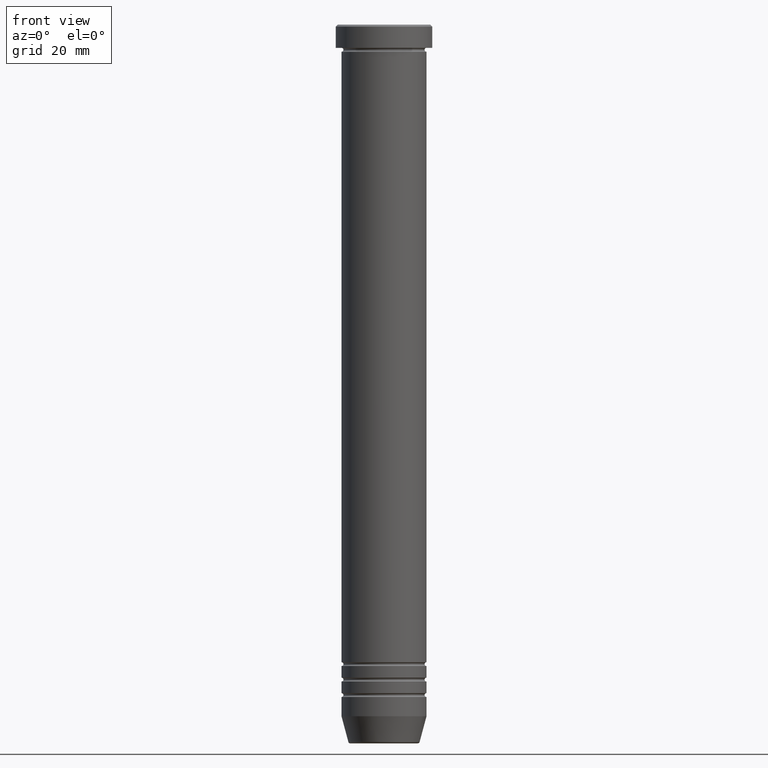
[diagram: clean part render]
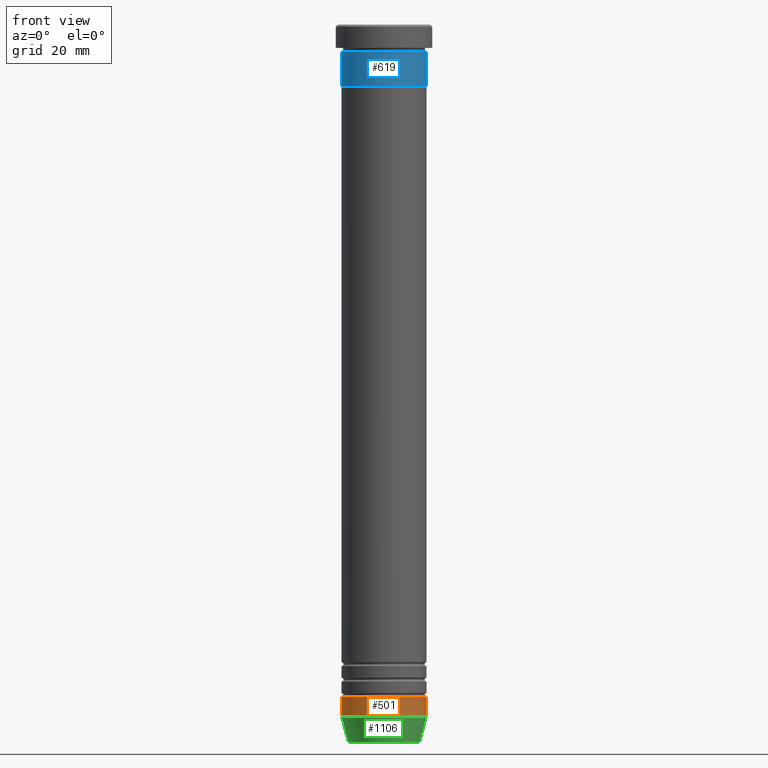
[diagram: same view with three faces highlighted in distinct colors, each labeled with its STEP entity id]
A machine part, front view with three faces highlighted in distinct colors.
Their STEP definitions:

[orange] entity #501 — the highlighted cylindrical surface (partial cylindrical patch) has radius 11 mm, axis along (-0, -0, 1).
#27 = VECTOR ( 'NONE', #895, 1000.000000000000000 ) ;
#55 = CARTESIAN_POINT ( 'NONE',  ( 0.000000000000000000, 0.000000000000000000, 0.000000000000000000 ) ) ;
#86 = ORIENTED_EDGE ( 'NONE', *, *, #672, .F. ) ;
#129 = DIRECTION ( 'NONE',  ( 1.000000000000000000, 0.000000000000000000, 0.000000000000000000 ) ) ;
#134 = LINE ( 'NONE', #224, #1122 ) ;
#158 = ORIENTED_EDGE ( 'NONE', *, *, #403, .T. ) ;
#213 = AXIS2_PLACEMENT_3D ( 'NONE', #668, #1032, #1130 ) ;
#224 = CARTESIAN_POINT ( 'NONE',  ( 11.00000000000000178, 0.000000000000000000, 0.000000000000000000 ) ) ;
#277 = EDGE_CURVE ( 'NONE', #920, #299, #456, .T. ) ;
#283 = CARTESIAN_POINT ( 'NONE',  ( 11.00000000000000178, 0.000000000000000000, -174.0000000000000000 ) ) ;
#299 = VERTEX_POINT ( 'NONE', #370 ) ;
#370 = CARTESIAN_POINT ( 'NONE',  ( -11.00000000000000178, 1.347111479062088602E-15, -174.0000000000000000 ) ) ;
#373 = CARTESIAN_POINT ( 'NONE',  ( 0.000000000000000000, 0.000000000000000000, -174.0000000000000000 ) ) ;
#403 = EDGE_CURVE ( 'NONE', #920, #773, #537, .T. ) ;
#456 = LINE ( 'NONE', #558, #27 ) ;
#469 = AXIS2_PLACEMENT_3D ( 'NONE', #373, #1082, #129 ) ;
#490 = FACE_OUTER_BOUND ( 'NONE', #569, .T. ) ;
#501 = ADVANCED_FACE ( 'NONE', ( #490 ), #839, .T. ) ;
#523 = ORIENTED_EDGE ( 'NONE', *, *, #888, .T. ) ;
#537 = CIRCLE ( 'NONE', #213, 11.00000000000000178 ) ;
#558 = CARTESIAN_POINT ( 'NONE',  ( -11.00000000000000178, 1.347111479062088602E-15, 0.000000000000000000 ) ) ;
#569 = EDGE_LOOP ( 'NONE', ( #1059, #158, #523, #86 ) ) ;
#649 = CARTESIAN_POINT ( 'NONE',  ( 11.00000000000000178, 0.000000000000000000, -179.0000000000000000 ) ) ;
#668 = CARTESIAN_POINT ( 'NONE',  ( 0.000000000000000000, 0.000000000000000000, -179.0000000000000000 ) ) ;
#669 = VERTEX_POINT ( 'NONE', #283 ) ;
#672 = EDGE_CURVE ( 'NONE', #299, #669, #701, .T. ) ;
#701 = CIRCLE ( 'NONE', #469, 11.00000000000000178 ) ;
#748 = DIRECTION ( 'NONE',  ( 1.000000000000000000, 0.000000000000000000, 0.000000000000000000 ) ) ;
#749 = CARTESIAN_POINT ( 'NONE',  ( -11.00000000000000178, 1.347111479062088602E-15, -179.0000000000000000 ) ) ;
#773 = VERTEX_POINT ( 'NONE', #649 ) ;
#839 = CYLINDRICAL_SURFACE ( 'NONE', #889, 11.00000000000000178 ) ;
#844 = DIRECTION ( 'NONE',  ( -0.000000000000000000, -0.000000000000000000, 1.000000000000000000 ) ) ;
#864 = DIRECTION ( 'NONE',  ( -0.000000000000000000, -0.000000000000000000, 1.000000000000000000 ) ) ;
#888 = EDGE_CURVE ( 'NONE', #773, #669, #134, .T. ) ;
#889 = AXIS2_PLACEMENT_3D ( 'NONE', #55, #844, #748 ) ;
#895 = DIRECTION ( 'NONE',  ( -0.000000000000000000, -0.000000000000000000, 1.000000000000000000 ) ) ;
#920 = VERTEX_POINT ( 'NONE', #749 ) ;
#1032 = DIRECTION ( 'NONE',  ( -0.000000000000000000, -0.000000000000000000, 1.000000000000000000 ) ) ;
#1059 = ORIENTED_EDGE ( 'NONE', *, *, #277, .F. ) ;
#1082 = DIRECTION ( 'NONE',  ( -0.000000000000000000, -0.000000000000000000, 1.000000000000000000 ) ) ;
#1122 = VECTOR ( 'NONE', #864, 1000.000000000000000 ) ;
#1130 = DIRECTION ( 'NONE',  ( 1.000000000000000000, 0.000000000000000000, 0.000000000000000000 ) ) ;

[blue] entity #619 — the highlighted cylindrical surface (partial cylindrical patch) has radius 11 mm, axis along (-0, -0, 1).
#29 = DIRECTION ( 'NONE',  ( -0.000000000000000000, -0.000000000000000000, 1.000000000000000000 ) ) ;
#41 = DIRECTION ( 'NONE',  ( 1.000000000000000000, 0.000000000000000000, 0.000000000000000000 ) ) ;
#53 = CIRCLE ( 'NONE', #914, 11.00000000000000000 ) ;
#107 = EDGE_LOOP ( 'NONE', ( #706, #296, #694, #473 ) ) ;
#165 = CARTESIAN_POINT ( 'NONE',  ( 0.000000000000000000, 0.000000000000000000, 0.000000000000000000 ) ) ;
#167 = CARTESIAN_POINT ( 'NONE',  ( 11.00000000000000000, 0.000000000000000000, -6.999999999999999112 ) ) ;
#176 = VERTEX_POINT ( 'NONE', #167 ) ;
#183 = DIRECTION ( 'NONE',  ( -0.000000000000000000, -0.000000000000000000, 1.000000000000000000 ) ) ;
#207 = DIRECTION ( 'NONE',  ( 1.000000000000000000, 0.000000000000000000, 0.000000000000000000 ) ) ;
#219 = EDGE_CURVE ( 'NONE', #989, #1069, #957, .T. ) ;
#230 = VECTOR ( 'NONE', #1002, 1000.000000000000000 ) ;
#260 = CARTESIAN_POINT ( 'NONE',  ( 11.00000000000000000, 0.000000000000000000, -16.00000000000000000 ) ) ;
#270 = FACE_OUTER_BOUND ( 'NONE', #107, .T. ) ;
#272 = CARTESIAN_POINT ( 'NONE',  ( -11.00000000000000000, 1.347111479062088405E-15, 0.000000000000000000 ) ) ;
#296 = ORIENTED_EDGE ( 'NONE', *, *, #1037, .T. ) ;
#306 = VECTOR ( 'NONE', #1090, 1000.000000000000000 ) ;
#318 = CARTESIAN_POINT ( 'NONE',  ( -11.00000000000000000, 1.347111479062088405E-15, -16.00000000000000000 ) ) ;
#419 = AXIS2_PLACEMENT_3D ( 'NONE', #165, #183, #689 ) ;
#439 = CARTESIAN_POINT ( 'NONE',  ( 11.00000000000000000, 0.000000000000000000, 0.000000000000000000 ) ) ;
#473 = ORIENTED_EDGE ( 'NONE', *, *, #731, .F. ) ;
#543 = CARTESIAN_POINT ( 'NONE',  ( -11.00000000000000000, 1.347111479062088405E-15, -6.999999999999999112 ) ) ;
#589 = VERTEX_POINT ( 'NONE', #260 ) ;
#619 = ADVANCED_FACE ( 'NONE', ( #270 ), #622, .T. ) ;
#622 = CYLINDRICAL_SURFACE ( 'NONE', #419, 11.00000000000000000 ) ;
#643 = DIRECTION ( 'NONE',  ( -0.000000000000000000, -0.000000000000000000, 1.000000000000000000 ) ) ;
#660 = EDGE_CURVE ( 'NONE', #589, #176, #870, .T. ) ;
#684 = CIRCLE ( 'NONE', #949, 11.00000000000000000 ) ;
#689 = DIRECTION ( 'NONE',  ( 1.000000000000000000, 0.000000000000000000, 0.000000000000000000 ) ) ;
#694 = ORIENTED_EDGE ( 'NONE', *, *, #660, .T. ) ;
#706 = ORIENTED_EDGE ( 'NONE', *, *, #219, .F. ) ;
#729 = CARTESIAN_POINT ( 'NONE',  ( 0.000000000000000000, 0.000000000000000000, -6.999999999999999112 ) ) ;
#731 = EDGE_CURVE ( 'NONE', #1069, #176, #684, .T. ) ;
#870 = LINE ( 'NONE', #439, #306 ) ;
#914 = AXIS2_PLACEMENT_3D ( 'NONE', #1034, #29, #207 ) ;
#949 = AXIS2_PLACEMENT_3D ( 'NONE', #729, #643, #41 ) ;
#957 = LINE ( 'NONE', #272, #230 ) ;
#989 = VERTEX_POINT ( 'NONE', #318 ) ;
#1002 = DIRECTION ( 'NONE',  ( -0.000000000000000000, -0.000000000000000000, 1.000000000000000000 ) ) ;
#1034 = CARTESIAN_POINT ( 'NONE',  ( 0.000000000000000000, 0.000000000000000000, -16.00000000000000000 ) ) ;
#1037 = EDGE_CURVE ( 'NONE', #989, #589, #53, .T. ) ;
#1069 = VERTEX_POINT ( 'NONE', #543 ) ;
#1090 = DIRECTION ( 'NONE',  ( -0.000000000000000000, -0.000000000000000000, 1.000000000000000000 ) ) ;

[green] entity #1106 — the highlighted conical surface has half-angle 15 deg.
#34 = CARTESIAN_POINT ( 'NONE',  ( -9.223655072137193045, 1.238341722557647399E-15, -185.6294095225512422 ) ) ;
#42 = FACE_OUTER_BOUND ( 'NONE', #302, .T. ) ;
#124 = DIRECTION ( 'NONE',  ( -0.2588190451025214611, 3.169619151431774186E-17, 0.9659258262890679791 ) ) ;
#153 = CARTESIAN_POINT ( 'NONE',  ( 0.000000000000000000, 0.000000000000000000, -185.6294095225512422 ) ) ;
#198 = VERTEX_POINT ( 'NONE', #963 ) ;
#213 = AXIS2_PLACEMENT_3D ( 'NONE', #668, #1032, #1130 ) ;
#254 = LINE ( 'NONE', #444, #635 ) ;
#302 = EDGE_LOOP ( 'NONE', ( #972, #808, #607, #381 ) ) ;
#324 = CONICAL_SURFACE ( 'NONE', #436, 9.124355652982133691, 0.2617993877991502405 ) ;
#381 = ORIENTED_EDGE ( 'NONE', *, *, #403, .F. ) ;
#388 = LINE ( 'NONE', #394, #508 ) ;
#392 = CARTESIAN_POINT ( 'NONE',  ( 0.000000000000000000, 0.000000000000000000, -186.0000000000000000 ) ) ;
#394 = CARTESIAN_POINT ( 'NONE',  ( -9.124355652982133691, 1.117411294470662806E-15, -186.0000000000000000 ) ) ;
#403 = EDGE_CURVE ( 'NONE', #920, #773, #537, .T. ) ;
#436 = AXIS2_PLACEMENT_3D ( 'NONE', #392, #570, #829 ) ;
#442 = EDGE_CURVE ( 'NONE', #710, #198, #504, .T. ) ;
#444 = CARTESIAN_POINT ( 'NONE',  ( 9.124355652982133691, 0.000000000000000000, -186.0000000000000000 ) ) ;
#495 = DIRECTION ( 'NONE',  ( -0.000000000000000000, -0.000000000000000000, 1.000000000000000000 ) ) ;
#504 = CIRCLE ( 'NONE', #1008, 9.223655072137193045 ) ;
#508 = VECTOR ( 'NONE', #124, 1000.000000000000114 ) ;
#537 = CIRCLE ( 'NONE', #213, 11.00000000000000178 ) ;
#570 = DIRECTION ( 'NONE',  ( -0.000000000000000000, -0.000000000000000000, 1.000000000000000000 ) ) ;
#604 = DIRECTION ( 'NONE',  ( 0.2588190451025214611, 0.000000000000000000, 0.9659258262890679791 ) ) ;
#607 = ORIENTED_EDGE ( 'NONE', *, *, #623, .T. ) ;
#623 = EDGE_CURVE ( 'NONE', #198, #773, #254, .T. ) ;
#635 = VECTOR ( 'NONE', #604, 1000.000000000000114 ) ;
#649 = CARTESIAN_POINT ( 'NONE',  ( 11.00000000000000178, 0.000000000000000000, -179.0000000000000000 ) ) ;
#668 = CARTESIAN_POINT ( 'NONE',  ( 0.000000000000000000, 0.000000000000000000, -179.0000000000000000 ) ) ;
#710 = VERTEX_POINT ( 'NONE', #34 ) ;
#749 = CARTESIAN_POINT ( 'NONE',  ( -11.00000000000000178, 1.347111479062088602E-15, -179.0000000000000000 ) ) ;
#765 = DIRECTION ( 'NONE',  ( -1.000000000000000000, 0.000000000000000000, 0.000000000000000000 ) ) ;
#773 = VERTEX_POINT ( 'NONE', #649 ) ;
#808 = ORIENTED_EDGE ( 'NONE', *, *, #442, .T. ) ;
#829 = DIRECTION ( 'NONE',  ( 1.000000000000000000, 0.000000000000000000, 0.000000000000000000 ) ) ;
#920 = VERTEX_POINT ( 'NONE', #749 ) ;
#963 = CARTESIAN_POINT ( 'NONE',  ( 9.223655072137193045, 0.000000000000000000, -185.6294095225512422 ) ) ;
#970 = EDGE_CURVE ( 'NONE', #710, #920, #388, .T. ) ;
#972 = ORIENTED_EDGE ( 'NONE', *, *, #970, .F. ) ;
#1008 = AXIS2_PLACEMENT_3D ( 'NONE', #153, #495, #765 ) ;
#1032 = DIRECTION ( 'NONE',  ( -0.000000000000000000, -0.000000000000000000, 1.000000000000000000 ) ) ;
#1106 = ADVANCED_FACE ( 'NONE', ( #42 ), #324, .T. ) ;
#1130 = DIRECTION ( 'NONE',  ( 1.000000000000000000, 0.000000000000000000, 0.000000000000000000 ) ) ;